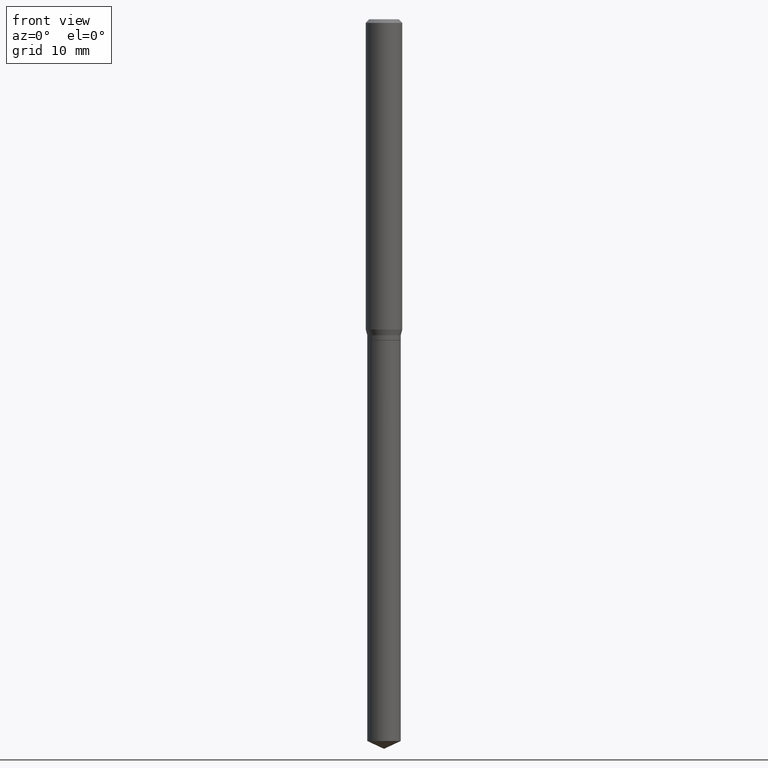
[diagram: clean part render]
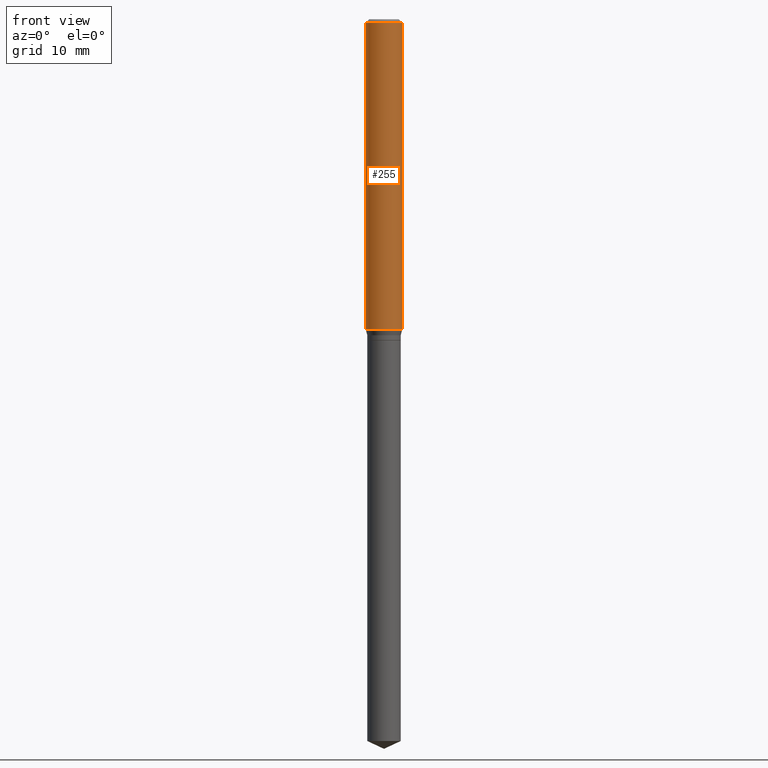
[diagram: same view with one face highlighted and labeled with its STEP entity id]
A machine part, front view. The second image highlights one B-rep face of the part: STEP entity #255.
In plain terms, the highlighted cylindrical surface (edge-blend (fillet) strip) has radius 1.4999 mm, axis along (-0, 0, 1).
Its self-contained STEP definition (entity closure, byte-faithful):
#18 = AXIS2_PLACEMENT_3D ( 'NONE', #467, #130, #319 ) ;
#44 = ORIENTED_EDGE ( 'NONE', *, *, #46, .T. ) ;
#45 = VECTOR ( 'NONE', #315, 39.37007874015748143 ) ;
#46 = EDGE_CURVE ( 'NONE', #340, #440, #360, .T. ) ;
#50 = CARTESIAN_POINT ( 'NONE',  ( 0.05905000000000011628, -3.920280465577730753E-15, -1.004712951042912472 ) ) ;
#60 = FACE_OUTER_BOUND ( 'NONE', #369, .T. ) ;
#66 = AXIS2_PLACEMENT_3D ( 'NONE', #257, #289, #106 ) ;
#68 = DIRECTION ( 'NONE',  ( 1.000000000000000000, -6.982962677686266711E-15, 0.000000000000000000 ) ) ;
#88 = LINE ( 'NONE', #127, #452 ) ;
#94 = DIRECTION ( 'NONE',  ( -2.445468806185136877E-29, 3.491481338843145188E-15, 1.000000000000000000 ) ) ;
#95 = CARTESIAN_POINT ( 'NONE',  ( -0.05905000000000006077, 4.195754854663395916E-16, -2.904631170795524694E-30 ) ) ;
#96 = CIRCLE ( 'NONE', #66, 0.05904999999999999832 ) ;
#97 = EDGE_CURVE ( 'NONE', #155, #476, #96, .T. ) ;
#106 = DIRECTION ( 'NONE',  ( 1.000000000000000000, -6.982962677686266711E-15, 0.000000000000000000 ) ) ;
#127 = CARTESIAN_POINT ( 'NONE',  ( 0.05905000000000006077, -4.123439461173744764E-16, 2.879382386107503023E-30 ) ) ;
#130 = DIRECTION ( 'NONE',  ( -2.445468806185136597E-29, 3.491481338843145583E-15, 1.000000000000000000 ) ) ;
#153 = ORIENTED_EDGE ( 'NONE', *, *, #461, .T. ) ;
#155 = VERTEX_POINT ( 'NONE', #419 ) ;
#163 = CARTESIAN_POINT ( 'NONE',  ( 0.05904999999999999832, -4.535783407291118600E-16, -0.01181000000000007044 ) ) ;
#194 = EDGE_CURVE ( 'NONE', #340, #155, #391, .T. ) ;
#228 = CARTESIAN_POINT ( 'NONE',  ( 2.456994180945656544E-29, -3.507936519460355438E-15, -1.004712951042912472 ) ) ;
#233 = ORIENTED_EDGE ( 'NONE', *, *, #194, .F. ) ;
#238 = CYLINDRICAL_SURFACE ( 'NONE', #18, 0.05905000000000006077 ) ;
#255 = ADVANCED_FACE ( 'NONE', ( #60 ), #238, .T. ) ;
#257 = CARTESIAN_POINT ( 'NONE',  ( 2.888098660104663766E-31, -4.123439461173779647E-17, -0.01181000000000007044 ) ) ;
#260 = AXIS2_PLACEMENT_3D ( 'NONE', #228, #406, #68 ) ;
#289 = DIRECTION ( 'NONE',  ( -2.445468806185136597E-29, 3.491481338843145583E-15, 1.000000000000000000 ) ) ;
#315 = DIRECTION ( 'NONE',  ( -2.445468806185136877E-29, 3.491481338843145188E-15, 1.000000000000000000 ) ) ;
#319 = DIRECTION ( 'NONE',  ( 1.000000000000000000, -6.982962677686266711E-15, 4.876176775795935793E-29 ) ) ;
#340 = VERTEX_POINT ( 'NONE', #485 ) ;
#360 = CIRCLE ( 'NONE', #260, 0.05905000000000011628 ) ;
#368 = ORIENTED_EDGE ( 'NONE', *, *, #97, .F. ) ;
#369 = EDGE_LOOP ( 'NONE', ( #233, #44, #153, #368 ) ) ;
#391 = LINE ( 'NONE', #95, #45 ) ;
#406 = DIRECTION ( 'NONE',  ( -2.445468806185136597E-29, 3.491481338843145583E-15, 1.000000000000000000 ) ) ;
#419 = CARTESIAN_POINT ( 'NONE',  ( -0.05904999999999999832, -1.355009971569706302E-15, -0.01181000000000007044 ) ) ;
#440 = VERTEX_POINT ( 'NONE', #50 ) ;
#452 = VECTOR ( 'NONE', #94, 39.37007874015748143 ) ;
#461 = EDGE_CURVE ( 'NONE', #440, #476, #88, .T. ) ;
#467 = CARTESIAN_POINT ( 'NONE',  ( 0.000000000000000000, 0.000000000000000000, 0.000000000000000000 ) ) ;
#476 = VERTEX_POINT ( 'NONE', #163 ) ;
#485 = CARTESIAN_POINT ( 'NONE',  ( -0.05905000000000011628, -3.088361033994015551E-15, -1.004712951042912472 ) ) ;